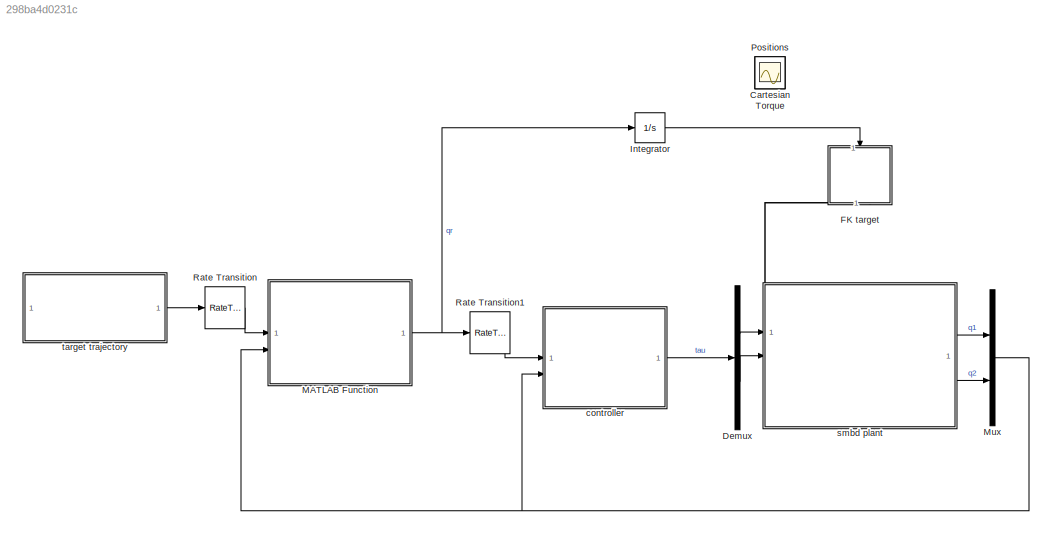
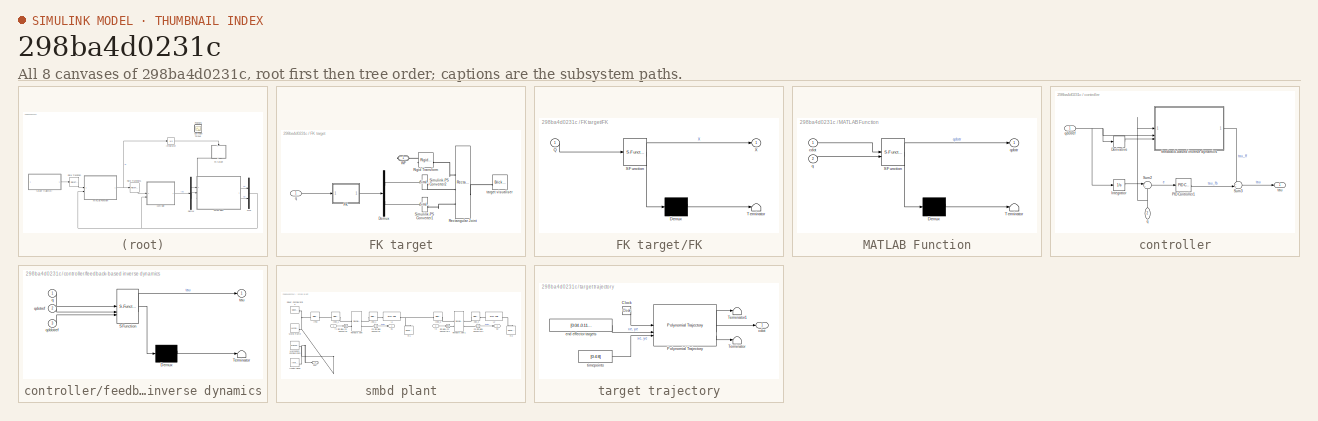
[diagram: thumbnail index - all 8 canvases of the model, root first then tree order]
MODEL slx_298ba4d0231c
KIND model
CONFIG AbsTol = 1e-3
CONFIG EnableMultiTasking = on
CONFIG FixedStep = auto
CONFIG InitFcn = init_const;
CONFIG MaxStep = 1e-2
CONFIG MinStep = auto
CONFIG RelTol = 1e-3
CONFIG SampleTimeConstraint = Unconstrained
CONFIG SolverName = ode23t
CONFIG StartTime = 0.0
CONFIG StopTime = 10
WORKSPACE source: mxarray member
WORKSPACE L1 = 0.1
WORKSPACE L2 = 0.1
WORKSPACE c1 = 0.1
WORKSPACE c2 = 0.1
WORKSPACE g = 9.80665
WORKSPACE m1 = 0.5
WORKSPACE m2 = 0.5
WORKSPACE theta10 = 0.785398163397
WORKSPACE theta20 = 0
BLOCK [Scope] Cartesian
  Floating = off
  IOType = viewer
  NumInputPorts = 1
  ScopeSpecificationString = Simulink.scopes.TimeScopeBlockCfg('CurrentConfiguration', extmgr.ConfigurationSet(extmgr.Configuration('Core','General UI',true,'FigureColor',[1 1 1]),extmgr.Configuration('Core','Source UI',true),extmgr.Configuration('Sources','WiredSimulink',true,'DataLoggingVariableName','ScopeData1'),extmgr.Configuration('Visuals','Time Domain',true,'SerializedDisplays',{struct('MinYLimReal','-0.14143','MaxYLi...<+2232ch>
BLOCK [Demux] Demux
  Outputs = 2
BLOCK [SubSystem] FK target
  NameLocation = left
BLOCK [Demux] FK target/Demux
  Outputs = 2
BLOCK [SubSystem] FK target/FK
  ErrorFcn = Stateflow.Translate.translate
  PermitHierarchicalResolution = ExplicitOnly
  SFBlockType = MATLAB Function
  TreatAsAtomicUnit = on
BLOCK [Demux] FK target/FK/ Demux 
  Outputs = 1
BLOCK [S-Function] FK target/FK/ SFunction 
  EnableBusSupport = on
  FunctionName = sf_sfun
  Parameters = L1,L2
  PortCounts = [1 2]
  SFcnIsStateOwnerBlock = off
  SFunctionDeploymentMode = off
  Tag = Stateflow S-Function 1
BLOCK [Terminator] FK target/FK/ Terminator 
BLOCK [Inport] FK target/FK/Q
BLOCK [Outport] FK target/FK/X
BLOCK [Reference] FK target/Rectangular Joint  REF=sm_lib/Joints/Rectangular
Joint
  SourceBlock = sm_lib/Joints/Rectangular\nJoint
  SourceType = Rectangular\nJoint
BLOCK [Reference] FK target/Rigid Transform  REF=sm_lib/Frames and
Transforms/Rigid
Transform
  NameLocation = top
  SourceBlock = sm_lib/Frames and\nTransforms/Rigid\nTransform
  SourceType = Rigid\nTransform
BLOCK [Reference] FK target/Simulink-PS Converter1  REF=nesl_utility/Simulink-PS
Converter
  SourceBlock = nesl_utility/Simulink-PS\nConverter
  SourceType = Simulink-PS\nConverter
BLOCK [Reference] FK target/Simulink-PS Converter2  REF=nesl_utility/Simulink-PS
Converter
  SourceBlock = nesl_utility/Simulink-PS\nConverter
  SourceType = Simulink-PS\nConverter
BLOCK [PMIOPort] FK target/WF
  NameLocation = top
  Side = Right
BLOCK [Inport] FK target/q
BLOCK [Reference] FK target/target visualiser  REF=sm_lib/Body Elements/Brick Solid
  NameLocation = top
  SourceBlock = sm_lib/Body Elements/Brick Solid
  SourceType = Brick Solid
BLOCK [Integrator] Integrator
BLOCK [SubSystem] MATLAB Function
  ErrorFcn = Stateflow.Translate.translate
  PermitHierarchicalResolution = ExplicitOnly
  SFBlockType = MATLAB Function
  TreatAsAtomicUnit = on
BLOCK [Demux] MATLAB Function/ Demux 
  Outputs = 1
BLOCK [S-Function] MATLAB Function/ SFunction 
  EnableBusSupport = on
  FunctionName = sf_sfun
  Parameters = L1,L2
  PortCounts = [2 2]
  SFcnIsStateOwnerBlock = off
  SFunctionDeploymentMode = off
  Tag = Stateflow S-Function 2
BLOCK [Terminator] MATLAB Function/ Terminator 
BLOCK [Inport] MATLAB Function/cdot
BLOCK [Inport] MATLAB Function/q
  Port = 2
BLOCK [Outport] MATLAB Function/qdotr
BLOCK [Mux] Mux
  DisplayOption = bar
  Inputs = 2
BLOCK [Scope] Positions
  Floating = off
  IOType = viewer
  NumInputPorts = 1
  ScopeSpecificationString = Simulink.scopes.TimeScopeBlockCfg('CurrentConfiguration', extmgr.ConfigurationSet(extmgr.Configuration('Core','General UI',true,'FigureColor',[1 1 1]),extmgr.Configuration('Core','Source UI',true),extmgr.Configuration('Sources','WiredSimulink',true),extmgr.Configuration('Visuals','Time Domain',true,'SerializedDisplays',{struct('MinYLimReal','-220223405234732.40625','MaxYLimReal','127497760925371.9...<+2975ch>
BLOCK [RateTransition] Rate Transition
BLOCK [RateTransition] Rate Transition1
BLOCK [Scope] Torque
  Floating = off
  IOType = viewer
  NumInputPorts = 1
  ScopeSpecificationString = Simulink.scopes.TimeScopeBlockCfg('CurrentConfiguration', extmgr.ConfigurationSet(extmgr.Configuration('Core','General UI',true,'FigureColor',[1 1 1]),extmgr.Configuration('Core','Source UI',true),extmgr.Configuration('Sources','WiredSimulink',true,'DataLoggingVariableName','ScopeData1'),extmgr.Configuration('Visuals','Time Domain',true,'SerializedDisplays',{struct('MinYLimReal','-116279.29924','M...<+1816ch>
BLOCK [SubSystem] controller
BLOCK [Derivative] controller/Derivative
BLOCK [Integrator] controller/Integrator
BLOCK [Reference] controller/PID Controller1  REF=slpidlib/PID Controller
  SourceBlock = slpidlib/PID Controller
  SourceType = PID 1dof
BLOCK [Sum] controller/Sum2
  Inputs = |+-
BLOCK [Sum] controller/Sum3
  Inputs = ++|
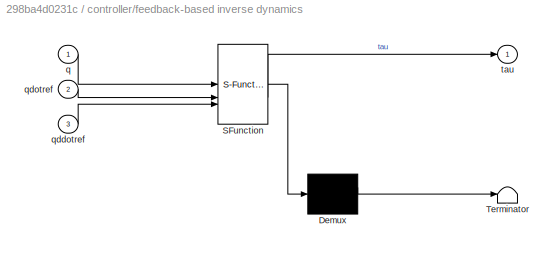
BLOCK [SubSystem] controller/feedback-based inverse dynamics
  ErrorFcn = Stateflow.Translate.translate
  PermitHierarchicalResolution = ExplicitOnly
  SFBlockType = MATLAB Function
  TreatAsAtomicUnit = on
BLOCK [Demux] controller/feedback-based inverse dynamics/ Demux 
  Outputs = 1
BLOCK [S-Function] controller/feedback-based inverse dynamics/ SFunction 
  EnableBusSupport = on
  FunctionName = sf_sfun
  Parameters = L1,L2,g,m1,m2
  PortCounts = [3 2]
  SFcnIsStateOwnerBlock = off
  SFunctionDeploymentMode = off
  Tag = Stateflow S-Function 3
BLOCK [Terminator] controller/feedback-based inverse dynamics/ Terminator 
BLOCK [Inport] controller/feedback-based inverse dynamics/q
BLOCK [Inport] controller/feedback-based inverse dynamics/qddotref
  Port = 3
BLOCK [Inport] controller/feedback-based inverse dynamics/qdotref
  Port = 2
BLOCK [Outport] controller/feedback-based inverse dynamics/tau
BLOCK [Inport] controller/q
  NameLocation = right
  Port = 2
BLOCK [Inport] controller/qdotref
BLOCK [Outport] controller/tau
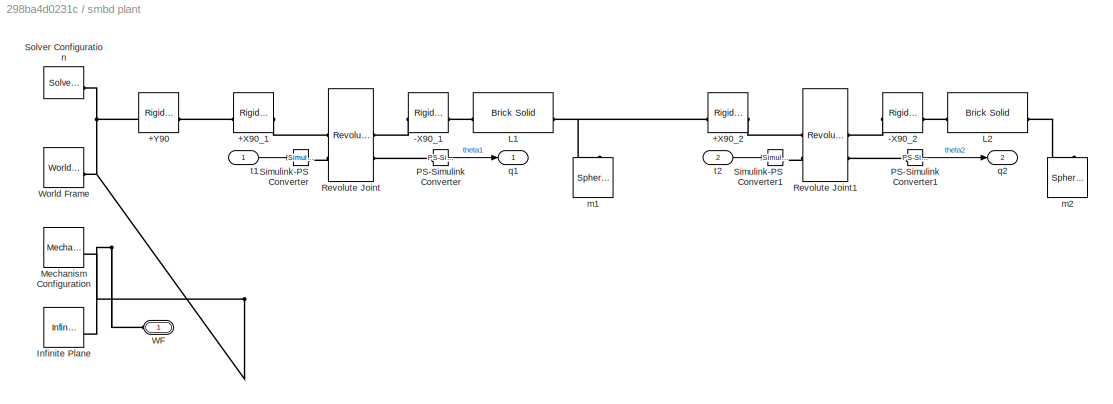
BLOCK [SubSystem] smbd plant
  PortSchema = {"entries":[{"content":{"sides":[{"content":{"connectorIds":["In1","In2"]},"type":"ConnectorPlacement.EquallySpacedRectSide","uuid":"145f753c-d624-4380-bbc3-839e6dd24c7c"},{"content":{"connectorIds":["Out1","Out2"],"side":"RIGHT"},"type":"ConnectorPlacement.EquallySpacedRectSide","uuid":"790bda0b-759c-4408-ab6d-e84098e7534f"},{"content":{"connectorIds":["LConn1"],"side":"TOP"},"type":"ConnectorPla...<+261ch>
BLOCK [Reference] smbd plant/+X90_1  REF=sm_lib/Frames and
Transforms/Rigid
Transform
  SourceBlock = sm_lib/Frames and\nTransforms/Rigid\nTransform
  SourceType = Rigid\nTransform
BLOCK [Reference] smbd plant/+X90_2  REF=sm_lib/Frames and
Transforms/Rigid
Transform
  SourceBlock = sm_lib/Frames and\nTransforms/Rigid\nTransform
  SourceType = Rigid\nTransform
BLOCK [Reference] smbd plant/+Y90  REF=sm_lib/Frames and
Transforms/Rigid
Transform
  SourceBlock = sm_lib/Frames and\nTransforms/Rigid\nTransform
  SourceType = Rigid\nTransform
BLOCK [Reference] smbd plant/-X90_1  REF=sm_lib/Frames and
Transforms/Rigid
Transform
  SourceBlock = sm_lib/Frames and\nTransforms/Rigid\nTransform
  SourceType = Rigid\nTransform
BLOCK [Reference] smbd plant/-X90_2  REF=sm_lib/Frames and
Transforms/Rigid
Transform
  SourceBlock = sm_lib/Frames and\nTransforms/Rigid\nTransform
  SourceType = Rigid\nTransform
BLOCK [Reference] smbd plant/Infinite Plane  REF=sm_lib/Curves and Surfaces/Infinite Plane
  NameLocation = top
  SourceBlock = sm_lib/Curves and Surfaces/Infinite Plane
  SourceType = Infinite Plane
BLOCK [Reference] smbd plant/L1  REF=sm_lib/Body Elements/Brick Solid
  NameLocation = top
  SourceBlock = sm_lib/Body Elements/Brick Solid
  SourceType = Brick Solid
BLOCK [Reference] smbd plant/L2  REF=sm_lib/Body Elements/Brick Solid
  NameLocation = top
  SourceBlock = sm_lib/Body Elements/Brick Solid
  SourceType = Brick Solid
BLOCK [Reference] smbd plant/Mechanism Configuration  REF=sm_lib/Utilities/Mechanism
Configuration
  SourceBlock = sm_lib/Utilities/Mechanism\nConfiguration
  SourceType = Mechanism\nConfiguration
BLOCK [Reference] smbd plant/PS-Simulink Converter  REF=nesl_utility/PS-Simulink
Converter
  SourceBlock = nesl_utility/PS-Simulink\nConverter
  SourceType = PS-Simulink\nConverter
BLOCK [Reference] smbd plant/PS-Simulink Converter1  REF=nesl_utility/PS-Simulink
Converter
  SourceBlock = nesl_utility/PS-Simulink\nConverter
  SourceType = PS-Simulink\nConverter
BLOCK [Reference] smbd plant/Revolute Joint  REF=sm_lib/Joints/Revolute Joint
  SourceBlock = sm_lib/Joints/Revolute Joint
  SourceType = Revolute Joint
BLOCK [Reference] smbd plant/Revolute Joint1  REF=sm_lib/Joints/Revolute Joint
  SourceBlock = sm_lib/Joints/Revolute Joint
  SourceType = Revolute Joint
BLOCK [Reference] smbd plant/Simulink-PS Converter  REF=nesl_utility/Simulink-PS
Converter
  SourceBlock = nesl_utility/Simulink-PS\nConverter
  SourceType = Simulink-PS\nConverter
BLOCK [Reference] smbd plant/Simulink-PS Converter1  REF=nesl_utility/Simulink-PS
Converter
  SourceBlock = nesl_utility/Simulink-PS\nConverter
  SourceType = Simulink-PS\nConverter
BLOCK [Reference] smbd plant/Solver Configuration  REF=nesl_utility/Solver
Configuration
  SourceBlock = nesl_utility/Solver\nConfiguration
  SourceType = Solver\nConfiguration
BLOCK [PMIOPort] smbd plant/WF
  NameLocation = top
  Side = Left
BLOCK [Reference] smbd plant/World Frame  REF=sm_lib/Frames and
Transforms/World Frame
  SourceBlock = sm_lib/Frames and\nTransforms/World Frame
  SourceType = World Frame
BLOCK [Reference] smbd plant/m1  REF=sm_lib/Body Elements/Spherical Solid
  NameLocation = right
  SourceBlock = sm_lib/Body Elements/Spherical Solid
  SourceType = Spherical Solid
BLOCK [Reference] smbd plant/m2  REF=sm_lib/Body Elements/Spherical Solid
  NameLocation = right
  SourceBlock = sm_lib/Body Elements/Spherical Solid
  SourceType = Spherical Solid
BLOCK [Outport] smbd plant/q1
BLOCK [Outport] smbd plant/q2
  Port = 2
BLOCK [Inport] smbd plant/t1
BLOCK [Inport] smbd plant/t2
  Port = 2
BLOCK [SubSystem] target trajectory
BLOCK [Clock] target trajectory/Clock
BLOCK [Reference] target trajectory/Polynomial Trajectory  REF=robotcorelib/Polynomial Trajectory
  SourceBlock = robotcorelib/Polynomial Trajectory
  SourceType = robotics.slcore.internal.block.PolyTrajSys
BLOCK [Terminator] target trajectory/Terminator
BLOCK [Terminator] target trajectory/Terminator1
BLOCK [Outport] target trajectory/cdot
BLOCK [Constant] target trajectory/end effector targets
  Value = [0.04 -0.11; 0.04 -0.11; -0.08 -0.03]'
BLOCK [Constant] target trajectory/timepoints
  Value = [0 4 8]
LINE Demux:1 -> smbd plant:1
LINE Demux:2 -> smbd plant:2
LINE FK target/Demux:1 -> FK target/Simulink-PS Converter2:1
LINE FK target/Demux:2 -> FK target/Simulink-PS Converter1:1
LINE FK target/FK:1 -> FK target/Demux:1
LINE FK target/q:1 -> FK target/FK:1
LINE Integrator:1 -> FK target:1
NET MATLAB Function:1 -> Integrator:1, Rate Transition1:1
NET Mux:1 -> MATLAB Function:2, controller:2
LINE Rate Transition1:1 -> controller:1
LINE Rate Transition:1 -> MATLAB Function:1
LINE controller/Derivative:1 -> controller/feedback-based inverse dynamics:3
LINE controller/Integrator:1 -> controller/Sum2:1
LINE controller/PID Controller1:1 -> controller/Sum3:2
LINE controller/Sum2:1 -> controller/PID Controller1:1
LINE controller/Sum3:1 -> controller/tau:1
LINE controller/feedback-based inverse dynamics:1 -> controller/Sum3:1
NET controller/q:1 -> controller/Sum2:2, controller/feedback-based inverse dynamics:1
NET controller/qdotref:1 -> controller/Derivative:1, controller/Integrator:1, controller/feedback-based inverse dynamics:2
LINE controller:1 -> Demux:1
LINE smbd plant/PS-Simulink Converter1:1 -> smbd plant/q2:1
LINE smbd plant/PS-Simulink Converter:1 -> smbd plant/q1:1
LINE smbd plant/t1:1 -> smbd plant/Simulink-PS Converter:1
LINE smbd plant/t2:1 -> smbd plant/Simulink-PS Converter1:1
LINE smbd plant:1 -> Mux:1
LINE smbd plant:2 -> Mux:2
LINE target trajectory/Clock:1 -> target trajectory/Polynomial Trajectory:1
LINE target trajectory/Polynomial Trajectory:1 -> target trajectory/Terminator1:1
LINE target trajectory/Polynomial Trajectory:2 -> target trajectory/cdot:1
LINE target trajectory/Polynomial Trajectory:3 -> target trajectory/Terminator:1
LINE target trajectory/end effector targets:1 -> target trajectory/Polynomial Trajectory:2
LINE target trajectory/timepoints:1 -> target trajectory/Polynomial Trajectory:3
LINE target trajectory:1 -> Rate Transition:1
PLINE FK target/Rectangular Joint:LConn1 -- FK target/Rigid Transform:LConn1
PLINE FK target/Rectangular Joint:LConn2 -- FK target/Simulink-PS Converter2:RConn1
PLINE FK target/Rectangular Joint:LConn3 -- FK target/Simulink-PS Converter1:RConn1
PLINE FK target/Rectangular Joint:RConn1 -- FK target/target visualiser:RConn1
PLINE FK target/Rigid Transform:RConn1 -- FK target/WF:RConn1
PLINE FK target:RConn1 -- smbd plant:LConn1
PLINE smbd plant/+X90_1:LConn1 -- smbd plant/+Y90:RConn1
PLINE smbd plant/+X90_1:RConn1 -- smbd plant/Revolute Joint:LConn1
PNET net1: smbd plant/+X90_2:LConn1 -- smbd plant/L1:RConn1 -- smbd plant/m1:RConn1
PLINE smbd plant/+X90_2:RConn1 -- smbd plant/Revolute Joint1:LConn1
PNET net2: smbd plant/+Y90:LConn1 -- smbd plant/Infinite Plane:LConn1 -- smbd plant/Mechanism Configuration:RConn1 -- smbd plant/Solver Configuration:RConn1 -- smbd plant/WF:RConn1 -- smbd plant/World Frame:RConn1
PLINE smbd plant/-X90_1:LConn1 -- smbd plant/Revolute Joint:RConn1
PLINE smbd plant/-X90_1:RConn1 -- smbd plant/L1:LConn1
PLINE smbd plant/-X90_2:LConn1 -- smbd plant/Revolute Joint1:RConn1
PLINE smbd plant/-X90_2:RConn1 -- smbd plant/L2:LConn1
PLINE smbd plant/L2:RConn1 -- smbd plant/m2:RConn1
PLINE smbd plant/PS-Simulink Converter1:LConn1 -- smbd plant/Revolute Joint1:RConn2
PLINE smbd plant/PS-Simulink Converter:LConn1 -- smbd plant/Revolute Joint:RConn2
PLINE smbd plant/Revolute Joint1:LConn2 -- smbd plant/Simulink-PS Converter1:RConn1
PLINE smbd plant/Revolute Joint:LConn2 -- smbd plant/Simulink-PS Converter:RConn1
note: NET lines group one-source signal fan-out (src -> all destinations, sorted); 1:1 wires keep LINE; PNET lines group multi-terminal physical nets as a canonical sorted terminal list (undirected conserving connections); 2-terminal nets keep the pairwise PLINE form
CHART FK target/FK states=1 transitions=1
  STATE_LABEL 'eML_blk_kernel()'
  STATE_LABEL 'SCRIPT:\nfunction X = FK(Q, L1, L2)\n\nq1 = Q(1);\nq2 = Q(2);\n\nX = zeros(2,1);\n\nX(1) = L1*sin(q1) + L2*sin(q1+q2);\nX(2) = -L1*cos(q1) - L2*cos(q1+q2);\n'
CHART MATLAB Function states=1 transitions=1
  STATE_LABEL 'eML_blk_kernel()'
  STATE_LABEL 'SCRIPT:\nfunction qdotr = IK(cdot, L1, L2, q)\n\n%% unpack\nq1 = q(1);\nq2 = q(2);\n\n%% Jacobian\nJfnc = @(L1,L2,q1,q2)reshape([-L2.*sin(q1+q2)-L1.*sin(q1),L2.*cos(q1+q2)+L1.*cos(q1),-L2.*sin(q1+q2),L2.*cos(q1+q2)],[2,2]);\n\nJ = Jfnc(L1,L2,q1,q2);\n\n%% IK\nqdotr = pinv(J)*cdot;\n\n\n\n'
CHART controller/feedback-based inverse dynamics states=1 transitions=1
  STATE_LABEL 'eML_blk_kernel()'
  STATE_LABEL 'SCRIPT:\nfunction tau = ID(q, qdotref, qddotref, m1, m2, L1, L2, g)\n\n%% inputs\nq1 = q(1);\nq2 = q(2);\n\nq1dot = qdotref(1);\nq2dot = qdotref(2);\n\n%% inertia\nM11 = (m1+m2)*L1^2 + m2*L2^2 + 2*m2*L1*L2*cos(q2);\nM12 = m2*L2^2 + m2*L1*L2*cos(q2);\nM21 = m2*L2^2+m2*L1*L2*cos(q2);\nM22 = m2*L2^2;\n\nM = [M11 M12; ...\n     M21 M22];\n\n%% coriolis\nC11 = -m2*L1*L2*2*q2dot*sin(q2);\nC12 = -m2*L1*L2*q2dot*sin(q2); \n\nC2...<+271ch>'
CHART  states=0 transitions=0
CHART  states=0 transitions=0
CHART  states=0 transitions=0
